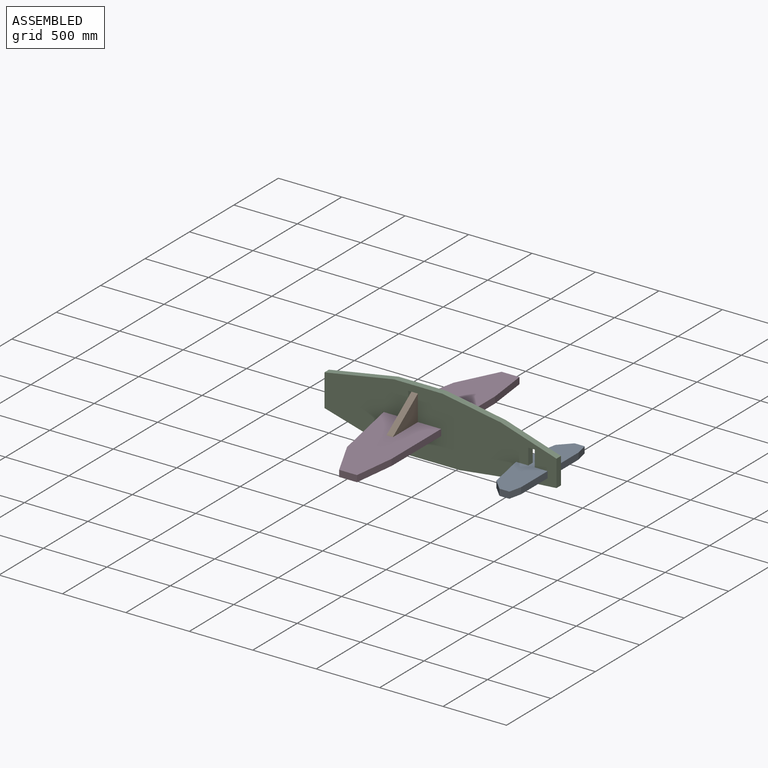
[diagram: assembled view]
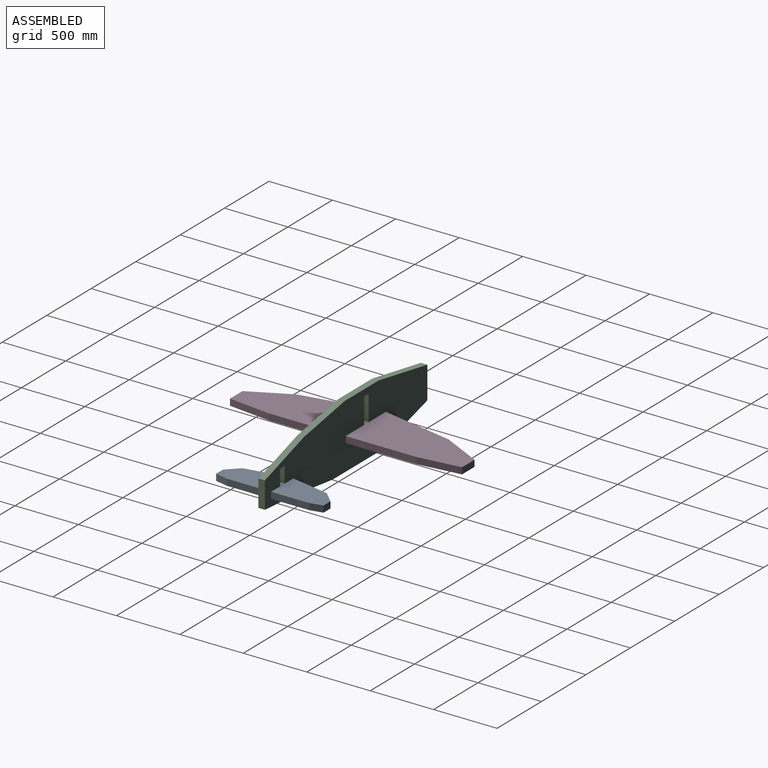
[diagram: assembled view, second angle]
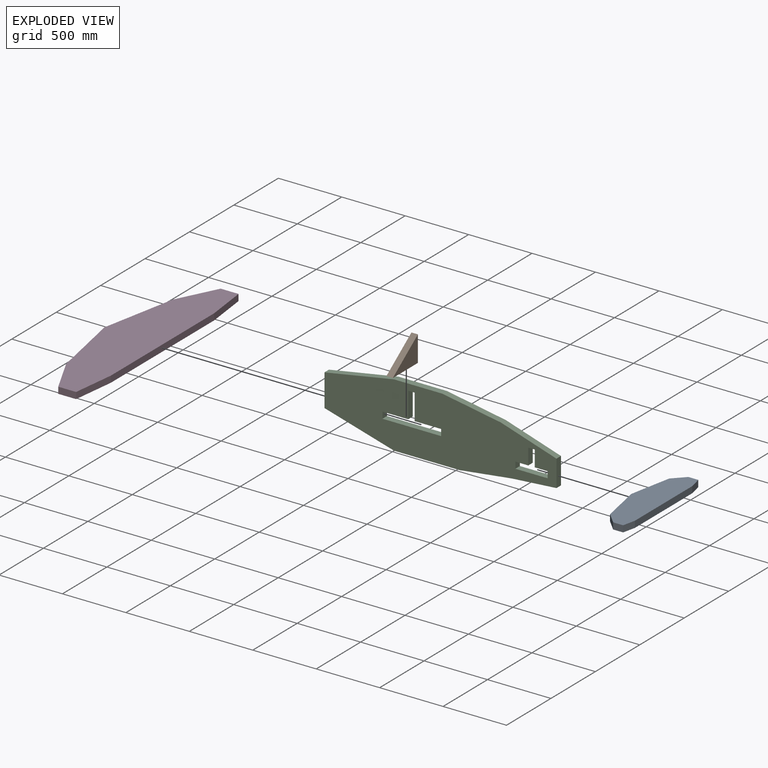
[diagram: exploded view]
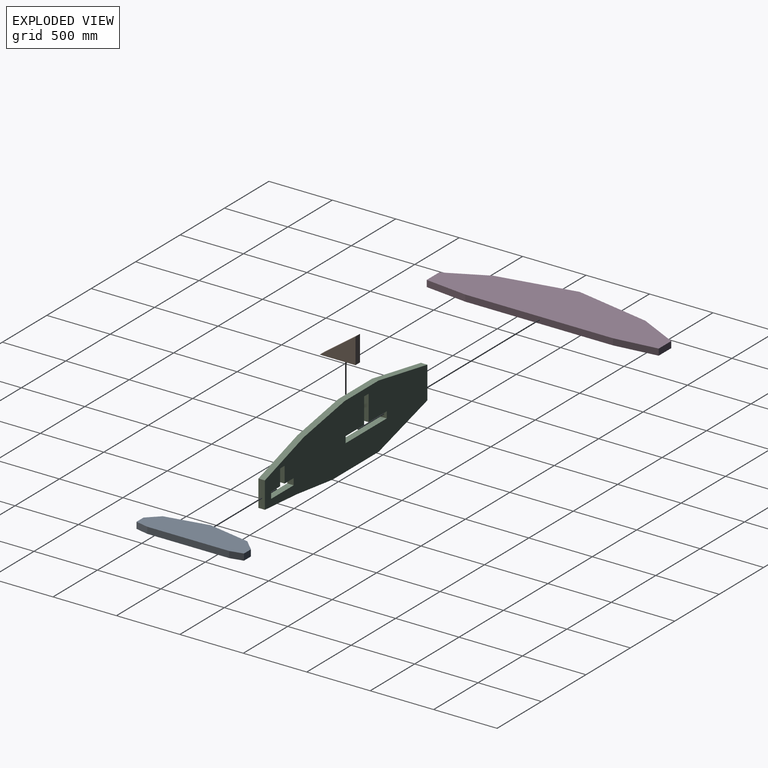
[diagram: exploded view, second angle]
ASSEMBLY  parts=4 mates=3
PART A: 11 faces, bbox 846.7x254x50.8 mm
  f0: plane 333.12x65.48mm, normal (0.19,-0.98,0), area 17246.2mm2, adj f1,f5,f6,f7
  f1: plane 90.22x87.81mm, normal (0.7,-0.72,0), area 6395.5mm2, adj f0,f2,f5,f6
  f2: plane 78.24x50.8mm, normal (1,0,0), area 3974.8mm2, adj f1,f3,f5,f6
  f3: plane 100.11x50.8mm, normal (0.22,0.98,0), area 5212.1mm2, adj f2,f4,f5,f6
  f4: plane 646.45x50.8mm, normal (0,1,0), area 32839.6mm2, adj f3,f5,f6,f10
  f5: plane 846.67x254mm, normal (0,0,1), area 171257.4mm2, adj f0,f1,f2,f3,f4,f7,f8,f9
  f6: plane 846.67x254mm, normal (0,0,-1), area 171257.4mm2, adj f0,f1,f2,f3,f4,f7,f8,f9
  f7: plane 333.12x65.48mm, normal (-0.19,-0.98,0), area 17246.2mm2, adj f0,f5,f6,f8
  f8: plane 90.22x87.81mm, normal (-0.7,-0.72,0), area 6395.5mm2, adj f5,f6,f7,f9
  f9: plane 78.24x50.8mm, normal (-1,0,0), area 3974.8mm2, adj f5,f6,f8,f10
  f10: plane 100.11x50.8mm, normal (-0.22,0.98,0), area 5212.1mm2, adj f4,f5,f6,f9
PART B: 5 faces, bbox 282x203.2x50.8 mm
  f0: plane 281.99x50.8mm, normal (0,1,0), area 14325.2mm2, adj f1,f2,f3,f4
  f1: plane 203.2x50.8mm, normal (-1,0,0), area 10322.6mm2, adj f0,f2,f3,f4
  f2: plane 281.99x203.2mm, normal (0.58,-0.81,0), area 17656.9mm2, adj f0,f1,f3,f4
  f3: plane 281.99x203.2mm, normal (0,0,1), area 28650.4mm2, adj f0,f1,f2
  f4: plane 281.99x203.2mm, normal (0,0,-1), area 28650.4mm2, adj f0,f1,f2
PART C: 28 faces, bbox 1828.8x50.8x508 mm
  f0: plane 1828.8x508mm, normal (0,-1,0), area 688007.3mm2, adj f2,f3,f4,f5,f6,f7,f8,f9
  f1: plane 1828.8x508mm, normal (0,1,0), area 688007.3mm2, adj f2,f3,f4,f5,f6,f7,f8,f9
  f2: plane 203.2x50.8mm, normal (0,0,-1), area 10322.6mm2, adj f0,f1,f14,f25
  f3: plane 254x50.8mm, normal (-1,0,0), area 12903.2mm2, adj f0,f1,f4,f12
  f4: plane 548.64x157.26mm, normal (-0.28,0,-0.96), area 28993.3mm2, adj f0,f1,f3,f5
  f5: plane 518.16x50.8mm, normal (0,0,-1), area 26322.5mm2, adj f0,f1,f4,f6
  f6: plane 410.38x50.8mm, normal (0.12,0,-0.99), area 21003.7mm2, adj f0,f1,f5,f7
  f7: plane 351.62x50.8mm, normal (0.07,0,-1), area 17909.7mm2, adj f0,f1,f6,f8
  f8: plane 209.59x50.8mm, normal (1,0,0), area 10646.9mm2, adj f0,f1,f7,f9
  f9: plane 437.84x140.28mm, normal (0.31,0,0.95), area 23355.9mm2, adj f0,f1,f8,f10
  f10: plane 461.32x82.15mm, normal (0.18,0,0.98), area 23803.8mm2, adj f0,f1,f9,f11
  f11: plane 381x50.8mm, normal (0,0,1), area 19354.8mm2, adj f0,f1,f10,f12
  f12: plane 548.64x96.74mm, normal (-0.17,0,0.98), area 28300.9mm2, adj f0,f1,f3,f11
  f13: plane 208.28x50.8mm, normal (0,0,-1), area 10580.6mm2, adj f0,f1,f16,f26
  f14: plane 50.8x50.8mm, normal (1,0,0), area 2580.6mm2, adj f0,f1,f2,f15
  f15: plane 462.28x50.8mm, normal (0,0,1), area 23483.8mm2, adj f0,f1,f14,f16
  f16: plane 50.8x50.8mm, normal (-1,0,0), area 2580.6mm2, adj f0,f1,f13,f15
  f17: plane 101.6x50.8mm, normal (0,0,-1), area 5161.3mm2, adj f0,f1,f18,f24
  f18: plane 127x50.8mm, normal (-1,0,0), area 6451.6mm2, adj f0,f1,f17,f19
  f19: plane 50.8x50.8mm, normal (0,0,-1), area 2580.6mm2, adj f0,f1,f18,f20
  f20: plane 127x50.8mm, normal (1,0,0), area 6451.6mm2, adj f0,f1,f19,f21
  f21: plane 101.6x50.8mm, normal (0,0,-1), area 5161.3mm2, adj f0,f1,f20,f22
  f22: plane 50.8x50.8mm, normal (1,0,0), area 2580.6mm2, adj f0,f1,f21,f23
  f23: plane 254x50.8mm, normal (0,0,1), area 12903.2mm2, adj f0,f1,f22,f24
  f24: plane 50.8x50.8mm, normal (-1,0,0), area 2580.6mm2, adj f0,f1,f17,f23
  f25: plane 203.2x50.8mm, normal (1,0,0), area 10322.6mm2, adj f0,f1,f2,f27
  f26: plane 203.2x50.8mm, normal (-1,0,0), area 10322.6mm2, adj f0,f1,f13,f27
  f27: plane 50.8x50.8mm, normal (0,0,-1), area 2580.6mm2, adj f0,f1,f25,f26
PART D: 11 faces, bbox 1828.8x457.2x50.8 mm
  f0: plane 599.61x117.86mm, normal (0.19,-0.98,0), area 31043.1mm2, adj f1,f5,f6,f7
  f1: plane 314.79x158.06mm, normal (0.45,-0.89,0), area 17893.9mm2, adj f0,f2,f5,f6
  f2: plane 140.84x50.8mm, normal (1,0,0), area 7154.6mm2, adj f1,f3,f5,f6
  f3: plane 332.6x50.8mm, normal (0.12,0.99,0), area 17020.4mm2, adj f2,f4,f5,f6
  f4: plane 1163.61x50.8mm, normal (0,1,0), area 59111.3mm2, adj f3,f5,f6,f10
  f5: plane 1828.8x457.2mm, normal (0,0,1), area 628054.1mm2, adj f0,f1,f2,f3,f4,f7,f8,f9
  f6: plane 1828.8x457.2mm, normal (0,0,-1), area 628054.1mm2, adj f0,f1,f2,f3,f4,f7,f8,f9
  f7: plane 599.61x117.86mm, normal (-0.19,-0.98,0), area 31043.1mm2, adj f0,f5,f6,f8
  f8: plane 314.79x158.06mm, normal (-0.45,-0.89,0), area 17893.9mm2, adj f5,f6,f7,f9
  f9: plane 140.84x50.8mm, normal (-1,0,0), area 7154.6mm2, adj f5,f6,f8,f10
  f10: plane 332.6x50.8mm, normal (-0.12,0.99,0), area 17020.4mm2, adj f4,f5,f6,f9
PLACE A rot(axis=(0.71,0.71,0),180deg) t=(1758.95,-25.4,20.65)mm
PLACE B rot(axis=(-0.58,0.58,-0.58),120deg) t=(685.8,-50.8,96.74)mm
PLACE C at identity
PLACE D rot(axis=(0,0,-1),90deg) t=(919.48,-25.4,45.94)mm
MATE planar D.f4 <-> C.f16  axis (1,0,0) through (919.48,-25.4,71.34)mm
MATE planar A.f4 <-> C.f24  axis (1,0,0) through (1758.95,-25.4,-4.75)mm
MATE planar B.f0 <-> C.f13  axis (0,0,-1) through (711.2,-50.8,96.74)mm
